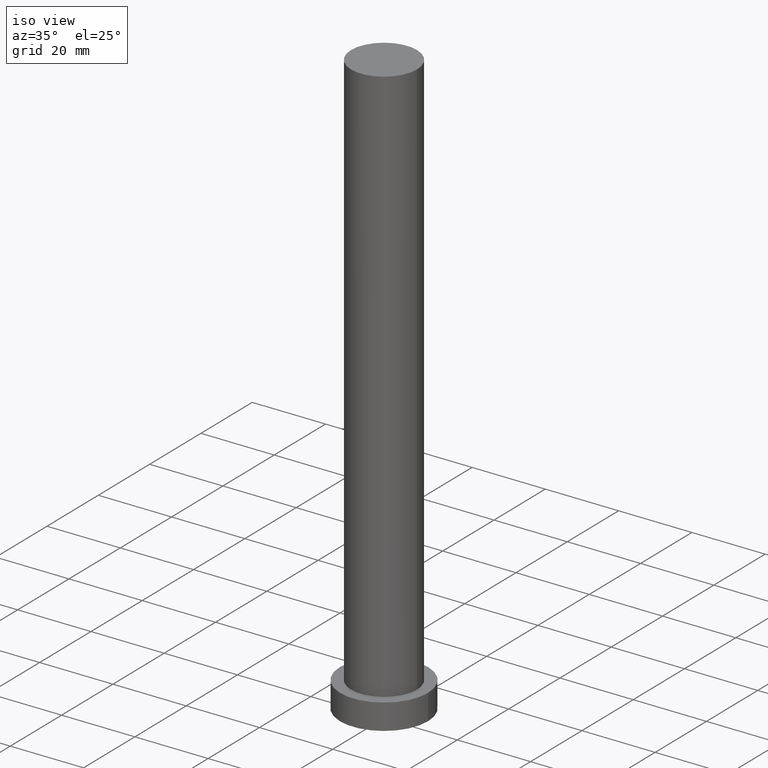
[diagram: clean part render]
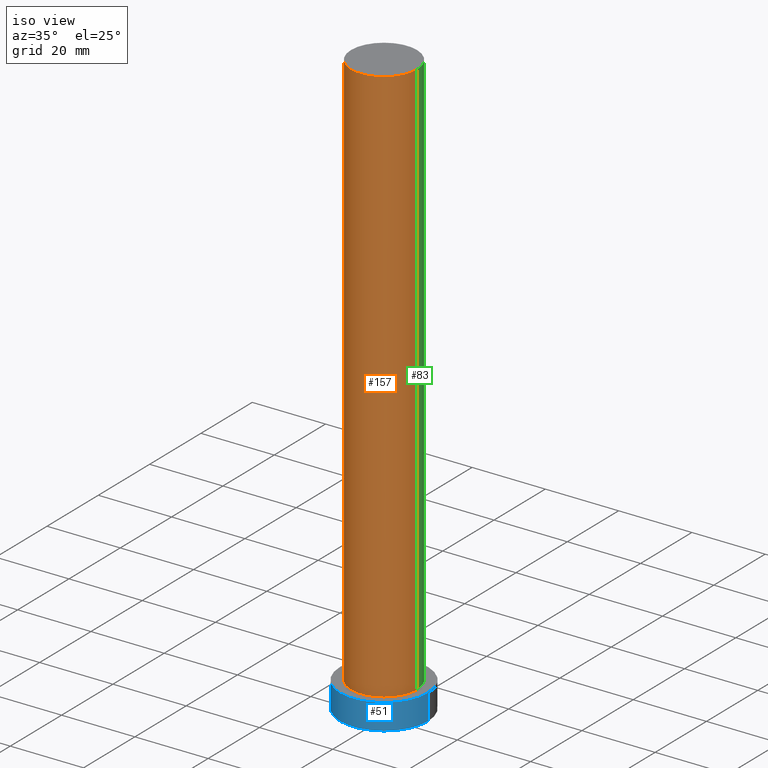
[diagram: same view with three faces highlighted in distinct colors, each labeled with its STEP entity id]
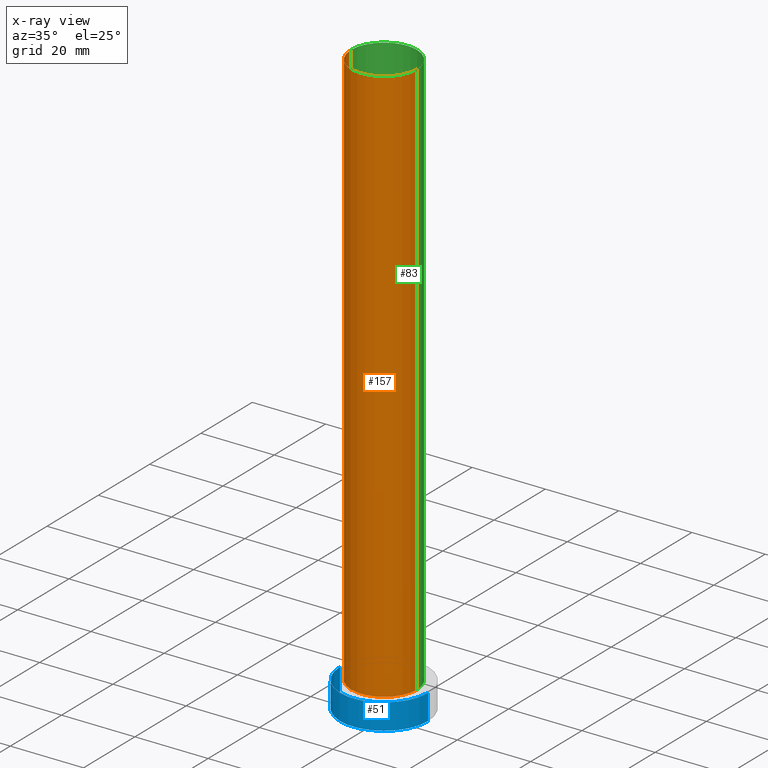
[diagram: x-ray of the same camera — body ghosted, the three highlighted faces saturated]
A machine part, iso view with three faces highlighted in distinct colors.
The next image is the same camera in x-ray (body ghosted, the three faces saturated) — at least one of them is partly hidden behind the body in this view.
Their STEP definitions:

[orange] entity #157 — the highlighted cylindrical surface (partial cylindrical patch) has radius 9 mm, axis along (-0, -0, -1).
#8 = AXIS2_PLACEMENT_3D ( 'NONE', #192, #113, #188 ) ;
#11 = VERTEX_POINT ( 'NONE', #96 ) ;
#12 = VERTEX_POINT ( 'NONE', #15 ) ;
#15 = CARTESIAN_POINT ( 'NONE',  ( -9.000000000000000000, 0.000000000000000000, 7.000000000000000000 ) ) ;
#16 = DIRECTION ( 'NONE',  ( -1.000000000000000000, 0.000000000000000000, 0.000000000000000000 ) ) ;
#26 = EDGE_CURVE ( 'NONE', #33, #222, #92, .T. ) ;
#33 = VERTEX_POINT ( 'NONE', #149 ) ;
#34 = AXIS2_PLACEMENT_3D ( 'NONE', #223, #233, #97 ) ;
#39 = CARTESIAN_POINT ( 'NONE',  ( 9.000000000000000000, 1.102182119232617714E-15, 160.0000000000000000 ) ) ;
#48 = CIRCLE ( 'NONE', #34, 9.000000000000000000 ) ;
#52 = CYLINDRICAL_SURFACE ( 'NONE', #190, 9.000000000000000000 ) ;
#62 = CARTESIAN_POINT ( 'NONE',  ( 9.000000000000000000, 1.102182119232617714E-15, 7.000000000000000000 ) ) ;
#66 = ORIENTED_EDGE ( 'NONE', *, *, #202, .T. ) ;
#68 = EDGE_CURVE ( 'NONE', #12, #222, #129, .T. ) ;
#92 = LINE ( 'NONE', #39, #241 ) ;
#96 = CARTESIAN_POINT ( 'NONE',  ( -9.000000000000000000, 0.000000000000000000, 160.0000000000000000 ) ) ;
#97 = DIRECTION ( 'NONE',  ( 1.000000000000000000, 0.000000000000000000, 0.000000000000000000 ) ) ;
#105 = VECTOR ( 'NONE', #236, 1000.000000000000000 ) ;
#113 = DIRECTION ( 'NONE',  ( 0.000000000000000000, 0.000000000000000000, 1.000000000000000000 ) ) ;
#129 = CIRCLE ( 'NONE', #8, 9.000000000000000000 ) ;
#148 = DIRECTION ( 'NONE',  ( -0.000000000000000000, -0.000000000000000000, -1.000000000000000000 ) ) ;
#149 = CARTESIAN_POINT ( 'NONE',  ( 9.000000000000000000, 1.102182119232617714E-15, 160.0000000000000000 ) ) ;
#157 = ADVANCED_FACE ( 'NONE', ( #211 ), #52, .T. ) ;
#172 = CARTESIAN_POINT ( 'NONE',  ( -9.000000000000000000, 0.000000000000000000, 160.0000000000000000 ) ) ;
#182 = ORIENTED_EDGE ( 'NONE', *, *, #68, .T. ) ;
#183 = EDGE_LOOP ( 'NONE', ( #230, #224, #66, #182 ) ) ;
#186 = CARTESIAN_POINT ( 'NONE',  ( 0.000000000000000000, 0.000000000000000000, 160.0000000000000000 ) ) ;
#188 = DIRECTION ( 'NONE',  ( 1.000000000000000000, 0.000000000000000000, 0.000000000000000000 ) ) ;
#190 = AXIS2_PLACEMENT_3D ( 'NONE', #186, #148, #16 ) ;
#192 = CARTESIAN_POINT ( 'NONE',  ( 0.000000000000000000, 0.000000000000000000, 7.000000000000000000 ) ) ;
#195 = EDGE_CURVE ( 'NONE', #11, #33, #48, .T. ) ;
#202 = EDGE_CURVE ( 'NONE', #11, #12, #208, .T. ) ;
#208 = LINE ( 'NONE', #172, #105 ) ;
#211 = FACE_OUTER_BOUND ( 'NONE', #183, .T. ) ;
#222 = VERTEX_POINT ( 'NONE', #62 ) ;
#223 = CARTESIAN_POINT ( 'NONE',  ( 0.000000000000000000, 0.000000000000000000, 160.0000000000000000 ) ) ;
#224 = ORIENTED_EDGE ( 'NONE', *, *, #195, .F. ) ;
#230 = ORIENTED_EDGE ( 'NONE', *, *, #26, .F. ) ;
#232 = DIRECTION ( 'NONE',  ( -0.000000000000000000, -0.000000000000000000, -1.000000000000000000 ) ) ;
#233 = DIRECTION ( 'NONE',  ( 0.000000000000000000, 0.000000000000000000, 1.000000000000000000 ) ) ;
#236 = DIRECTION ( 'NONE',  ( -0.000000000000000000, -0.000000000000000000, -1.000000000000000000 ) ) ;
#241 = VECTOR ( 'NONE', #232, 1000.000000000000000 ) ;

[blue] entity #51 — the highlighted cylindrical surface (partial cylindrical patch) has radius 12 mm, axis along (-0, -0, -1).
#4 = CARTESIAN_POINT ( 'NONE',  ( 0.000000000000000000, 0.000000000000000000, 7.000000000000000000 ) ) ;
#13 = AXIS2_PLACEMENT_3D ( 'NONE', #115, #173, #168 ) ;
#14 = CARTESIAN_POINT ( 'NONE',  ( -12.00000000000000178, 0.000000000000000000, 0.000000000000000000 ) ) ;
#18 = ORIENTED_EDGE ( 'NONE', *, *, #213, .F. ) ;
#22 = DIRECTION ( 'NONE',  ( 0.000000000000000000, 0.000000000000000000, 1.000000000000000000 ) ) ;
#38 = CYLINDRICAL_SURFACE ( 'NONE', #13, 12.00000000000000178 ) ;
#42 = CARTESIAN_POINT ( 'NONE',  ( -12.00000000000000178, 0.000000000000000000, 7.000000000000000000 ) ) ;
#47 = CIRCLE ( 'NONE', #176, 12.00000000000000178 ) ;
#51 = ADVANCED_FACE ( 'NONE', ( #187 ), #38, .T. ) ;
#53 = DIRECTION ( 'NONE',  ( -0.000000000000000000, -0.000000000000000000, -1.000000000000000000 ) ) ;
#57 = CARTESIAN_POINT ( 'NONE',  ( 12.00000000000000178, 1.469576158976824144E-15, 7.000000000000000000 ) ) ;
#72 = CARTESIAN_POINT ( 'NONE',  ( 0.000000000000000000, 0.000000000000000000, 0.000000000000000000 ) ) ;
#73 = CARTESIAN_POINT ( 'NONE',  ( 12.00000000000000178, 1.469576158976824144E-15, 0.000000000000000000 ) ) ;
#84 = VERTEX_POINT ( 'NONE', #114 ) ;
#85 = DIRECTION ( 'NONE',  ( 0.000000000000000000, 0.000000000000000000, 1.000000000000000000 ) ) ;
#87 = VERTEX_POINT ( 'NONE', #73 ) ;
#89 = EDGE_CURVE ( 'NONE', #84, #87, #231, .T. ) ;
#108 = VECTOR ( 'NONE', #53, 1000.000000000000000 ) ;
#114 = CARTESIAN_POINT ( 'NONE',  ( 12.00000000000000178, 1.469576158976824144E-15, 7.000000000000000000 ) ) ;
#115 = CARTESIAN_POINT ( 'NONE',  ( 0.000000000000000000, 0.000000000000000000, 7.000000000000000000 ) ) ;
#126 = VERTEX_POINT ( 'NONE', #14 ) ;
#141 = DIRECTION ( 'NONE',  ( 1.000000000000000000, 0.000000000000000000, 0.000000000000000000 ) ) ;
#142 = LINE ( 'NONE', #42, #219 ) ;
#145 = DIRECTION ( 'NONE',  ( 1.000000000000000000, 0.000000000000000000, 0.000000000000000000 ) ) ;
#152 = CIRCLE ( 'NONE', #200, 12.00000000000000178 ) ;
#160 = ORIENTED_EDGE ( 'NONE', *, *, #240, .T. ) ;
#163 = ORIENTED_EDGE ( 'NONE', *, *, #89, .F. ) ;
#168 = DIRECTION ( 'NONE',  ( -1.000000000000000000, 0.000000000000000000, 0.000000000000000000 ) ) ;
#169 = EDGE_CURVE ( 'NONE', #126, #87, #152, .T. ) ;
#173 = DIRECTION ( 'NONE',  ( -0.000000000000000000, -0.000000000000000000, -1.000000000000000000 ) ) ;
#176 = AXIS2_PLACEMENT_3D ( 'NONE', #4, #22, #141 ) ;
#187 = FACE_OUTER_BOUND ( 'NONE', #251, .T. ) ;
#194 = DIRECTION ( 'NONE',  ( -0.000000000000000000, -0.000000000000000000, -1.000000000000000000 ) ) ;
#196 = CARTESIAN_POINT ( 'NONE',  ( -12.00000000000000178, 0.000000000000000000, 7.000000000000000000 ) ) ;
#200 = AXIS2_PLACEMENT_3D ( 'NONE', #72, #85, #145 ) ;
#204 = VERTEX_POINT ( 'NONE', #196 ) ;
#213 = EDGE_CURVE ( 'NONE', #204, #84, #47, .T. ) ;
#219 = VECTOR ( 'NONE', #194, 1000.000000000000000 ) ;
#231 = LINE ( 'NONE', #57, #108 ) ;
#240 = EDGE_CURVE ( 'NONE', #204, #126, #142, .T. ) ;
#251 = EDGE_LOOP ( 'NONE', ( #163, #18, #160, #253 ) ) ;
#253 = ORIENTED_EDGE ( 'NONE', *, *, #169, .T. ) ;

[green] entity #83 — the highlighted cylindrical surface (partial cylindrical patch) has radius 9 mm, axis along (-0, -0, -1).
#11 = VERTEX_POINT ( 'NONE', #96 ) ;
#12 = VERTEX_POINT ( 'NONE', #15 ) ;
#15 = CARTESIAN_POINT ( 'NONE',  ( -9.000000000000000000, 0.000000000000000000, 7.000000000000000000 ) ) ;
#26 = EDGE_CURVE ( 'NONE', #33, #222, #92, .T. ) ;
#28 = DIRECTION ( 'NONE',  ( 0.000000000000000000, 0.000000000000000000, 1.000000000000000000 ) ) ;
#31 = EDGE_LOOP ( 'NONE', ( #161, #227, #254, #249 ) ) ;
#33 = VERTEX_POINT ( 'NONE', #149 ) ;
#39 = CARTESIAN_POINT ( 'NONE',  ( 9.000000000000000000, 1.102182119232617714E-15, 160.0000000000000000 ) ) ;
#44 = AXIS2_PLACEMENT_3D ( 'NONE', #171, #167, #54 ) ;
#45 = CARTESIAN_POINT ( 'NONE',  ( 0.000000000000000000, 0.000000000000000000, 7.000000000000000000 ) ) ;
#54 = DIRECTION ( 'NONE',  ( 1.000000000000000000, 0.000000000000000000, 0.000000000000000000 ) ) ;
#55 = EDGE_CURVE ( 'NONE', #33, #11, #135, .T. ) ;
#56 = FACE_OUTER_BOUND ( 'NONE', #31, .T. ) ;
#58 = AXIS2_PLACEMENT_3D ( 'NONE', #45, #28, #74 ) ;
#61 = AXIS2_PLACEMENT_3D ( 'NONE', #131, #235, #207 ) ;
#62 = CARTESIAN_POINT ( 'NONE',  ( 9.000000000000000000, 1.102182119232617714E-15, 7.000000000000000000 ) ) ;
#74 = DIRECTION ( 'NONE',  ( 1.000000000000000000, 0.000000000000000000, 0.000000000000000000 ) ) ;
#83 = ADVANCED_FACE ( 'NONE', ( #56 ), #98, .T. ) ;
#92 = LINE ( 'NONE', #39, #241 ) ;
#96 = CARTESIAN_POINT ( 'NONE',  ( -9.000000000000000000, 0.000000000000000000, 160.0000000000000000 ) ) ;
#98 = CYLINDRICAL_SURFACE ( 'NONE', #61, 9.000000000000000000 ) ;
#105 = VECTOR ( 'NONE', #236, 1000.000000000000000 ) ;
#122 = EDGE_CURVE ( 'NONE', #222, #12, #225, .T. ) ;
#131 = CARTESIAN_POINT ( 'NONE',  ( 0.000000000000000000, 0.000000000000000000, 160.0000000000000000 ) ) ;
#135 = CIRCLE ( 'NONE', #44, 9.000000000000000000 ) ;
#149 = CARTESIAN_POINT ( 'NONE',  ( 9.000000000000000000, 1.102182119232617714E-15, 160.0000000000000000 ) ) ;
#161 = ORIENTED_EDGE ( 'NONE', *, *, #55, .F. ) ;
#167 = DIRECTION ( 'NONE',  ( 0.000000000000000000, 0.000000000000000000, 1.000000000000000000 ) ) ;
#171 = CARTESIAN_POINT ( 'NONE',  ( 0.000000000000000000, 0.000000000000000000, 160.0000000000000000 ) ) ;
#172 = CARTESIAN_POINT ( 'NONE',  ( -9.000000000000000000, 0.000000000000000000, 160.0000000000000000 ) ) ;
#202 = EDGE_CURVE ( 'NONE', #11, #12, #208, .T. ) ;
#207 = DIRECTION ( 'NONE',  ( -1.000000000000000000, 0.000000000000000000, 0.000000000000000000 ) ) ;
#208 = LINE ( 'NONE', #172, #105 ) ;
#222 = VERTEX_POINT ( 'NONE', #62 ) ;
#225 = CIRCLE ( 'NONE', #58, 9.000000000000000000 ) ;
#227 = ORIENTED_EDGE ( 'NONE', *, *, #26, .T. ) ;
#232 = DIRECTION ( 'NONE',  ( -0.000000000000000000, -0.000000000000000000, -1.000000000000000000 ) ) ;
#235 = DIRECTION ( 'NONE',  ( -0.000000000000000000, -0.000000000000000000, -1.000000000000000000 ) ) ;
#236 = DIRECTION ( 'NONE',  ( -0.000000000000000000, -0.000000000000000000, -1.000000000000000000 ) ) ;
#241 = VECTOR ( 'NONE', #232, 1000.000000000000000 ) ;
#249 = ORIENTED_EDGE ( 'NONE', *, *, #202, .F. ) ;
#254 = ORIENTED_EDGE ( 'NONE', *, *, #122, .T. ) ;